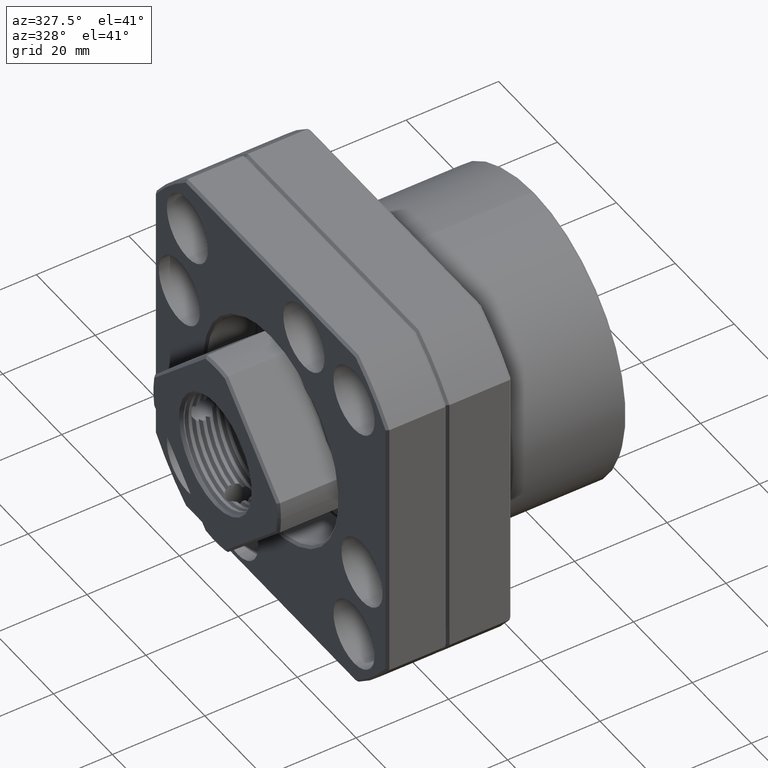
[diagram: clean part render]
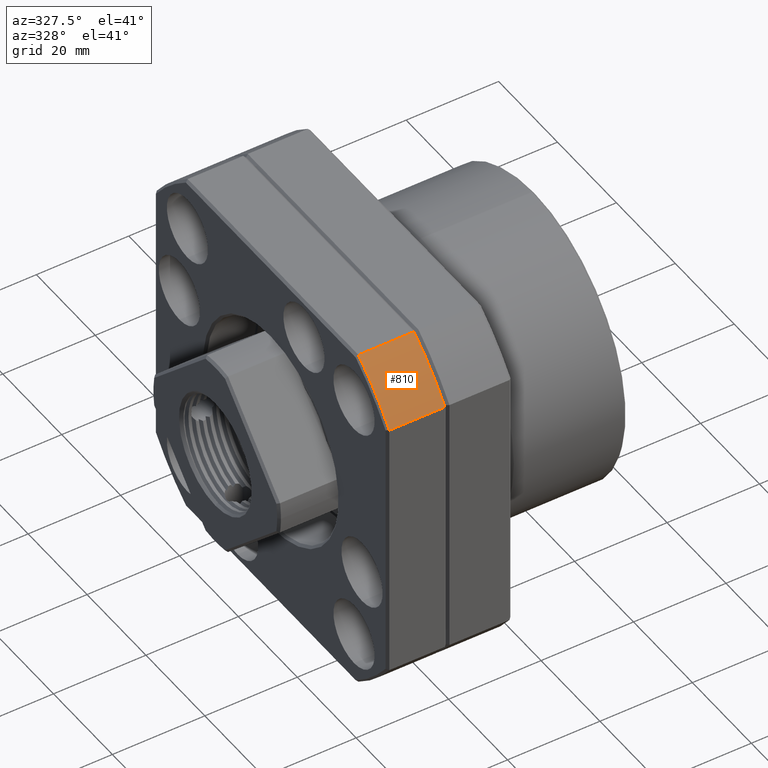
[diagram: same view with one face highlighted and labeled with its STEP entity id]
A machine part, auxiliary view. The second image highlights one B-rep face of the part: STEP entity #810.
In plain terms, the highlighted cylindrical surface (partial cylindrical patch) has radius 49 mm, axis along (-1, 0, 0).
Its self-contained STEP definition (entity closure, byte-faithful):
#810 = ADVANCED_FACE ( 'NONE', ( #17827 ), #17822, .T. ) ;
#812 = ORIENTED_EDGE ( 'NONE', *, *, #813, .F. ) ;
#813 = EDGE_CURVE ( 'NONE', #814, #815, #17817, .T. ) ;
#814 = VERTEX_POINT ( 'NONE', #17813 ) ;
#815 = VERTEX_POINT ( 'NONE', #17812 ) ;
#816 = ORIENTED_EDGE ( 'NONE', *, *, #817, .T. ) ;
#817 = EDGE_CURVE ( 'NONE', #814, #818, #17811, .T. ) ;
#818 = VERTEX_POINT ( 'NONE', #17806 ) ;
#819 = ORIENTED_EDGE ( 'NONE', *, *, #820, .F. ) ;
#820 = EDGE_CURVE ( 'NONE', #821, #818, #17805, .T. ) ;
#821 = VERTEX_POINT ( 'NONE', #17801 ) ;
#822 = ORIENTED_EDGE ( 'NONE', *, *, #823, .T. ) ;
#823 = EDGE_CURVE ( 'NONE', #821, #815, #17865, .T. ) ;
#841 = EDGE_LOOP ( 'NONE', ( #812, #816, #819, #822 ) ) ;
#17801 = CARTESIAN_POINT ( 'NONE',  ( -12.49999999999997200, -28.99568933479596900, 39.49999999999999300 ) ) ;
#17802 = DIRECTION ( 'NONE',  ( 1.000000000000000000, -0.0000000000000000000, -0.0000000000000000000 ) ) ;
#17803 = VECTOR ( 'NONE', #17802, 1000.000000000000000 ) ;
#17804 = CARTESIAN_POINT ( 'NONE',  ( -55.83312411036066400, -28.99568933479596900, 39.49999999999999300 ) ) ;
#17805 = LINE ( 'NONE', #17804, #17803 ) ;
#17806 = CARTESIAN_POINT ( 'NONE',  ( -0.5000000000000022200, -28.99568933479596900, 39.49999999999999300 ) ) ;
#17807 = DIRECTION ( 'NONE',  ( 0.0000000000000000000, -2.220446049250312100E-016, 1.000000000000000000 ) ) ;
#17808 = DIRECTION ( 'NONE',  ( -1.000000000000000000, 0.0000000000000000000, 0.0000000000000000000 ) ) ;
#17809 = CARTESIAN_POINT ( 'NONE',  ( -0.5000000000000022200, 3.467012496382234000E-015, 3.166031116752753200E-015 ) ) ;
#17810 = AXIS2_PLACEMENT_3D ( 'NONE', #17809, #17808, #17807 ) ;
#17811 = CIRCLE ( 'NONE', #17810, 49.00000000000000000 ) ;
#17812 = CARTESIAN_POINT ( 'NONE',  ( -12.49999999999997200, -39.50000000000000700, 28.99568933479595500 ) ) ;
#17813 = CARTESIAN_POINT ( 'NONE',  ( -0.5000000000000022200, -39.50000000000000700, 28.99568933479595500 ) ) ;
#17814 = DIRECTION ( 'NONE',  ( -1.000000000000000000, 0.0000000000000000000, 0.0000000000000000000 ) ) ;
#17815 = VECTOR ( 'NONE', #17814, 1000.000000000000000 ) ;
#17816 = CARTESIAN_POINT ( 'NONE',  ( -55.83312411036066400, -39.50000000000000700, 28.99568933479595500 ) ) ;
#17817 = LINE ( 'NONE', #17816, #17815 ) ;
#17818 = DIRECTION ( 'NONE',  ( 0.0000000000000000000, -2.220446049250312100E-016, 1.000000000000000000 ) ) ;
#17819 = DIRECTION ( 'NONE',  ( -1.000000000000000000, 0.0000000000000000000, 0.0000000000000000000 ) ) ;
#17820 = CARTESIAN_POINT ( 'NONE',  ( -55.83312411036066400, 3.467012496382234000E-015, 3.166031116752753200E-015 ) ) ;
#17821 = AXIS2_PLACEMENT_3D ( 'NONE', #17820, #17819, #17818 ) ;
#17822 = CYLINDRICAL_SURFACE ( 'NONE', #17821, 49.00000000000000000 ) ;
#17827 = FACE_OUTER_BOUND ( 'NONE', #841, .T. ) ;
#17861 = DIRECTION ( 'NONE',  ( 0.0000000000000000000, 2.220446049250312300E-016, -1.000000000000000000 ) ) ;
#17862 = DIRECTION ( 'NONE',  ( 1.000000000000000000, 0.0000000000000000000, 0.0000000000000000000 ) ) ;
#17863 = CARTESIAN_POINT ( 'NONE',  ( -12.49999999999997200, 3.467012496382234000E-015, 3.166031116752753200E-015 ) ) ;
#17864 = AXIS2_PLACEMENT_3D ( 'NONE', #17863, #17862, #17861 ) ;
#17865 = CIRCLE ( 'NONE', #17864, 49.00000000000000000 ) ;